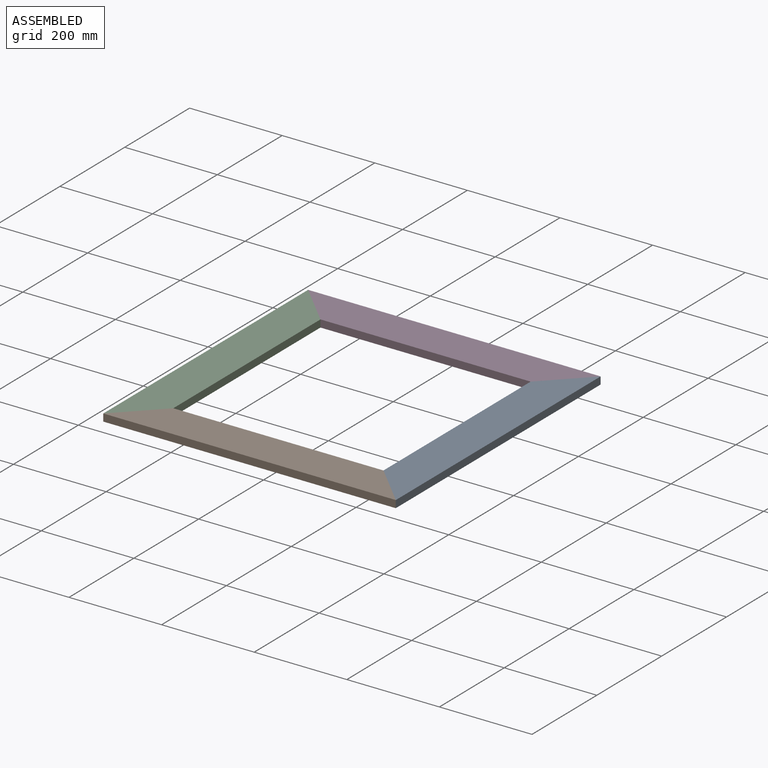
[diagram: assembled view]
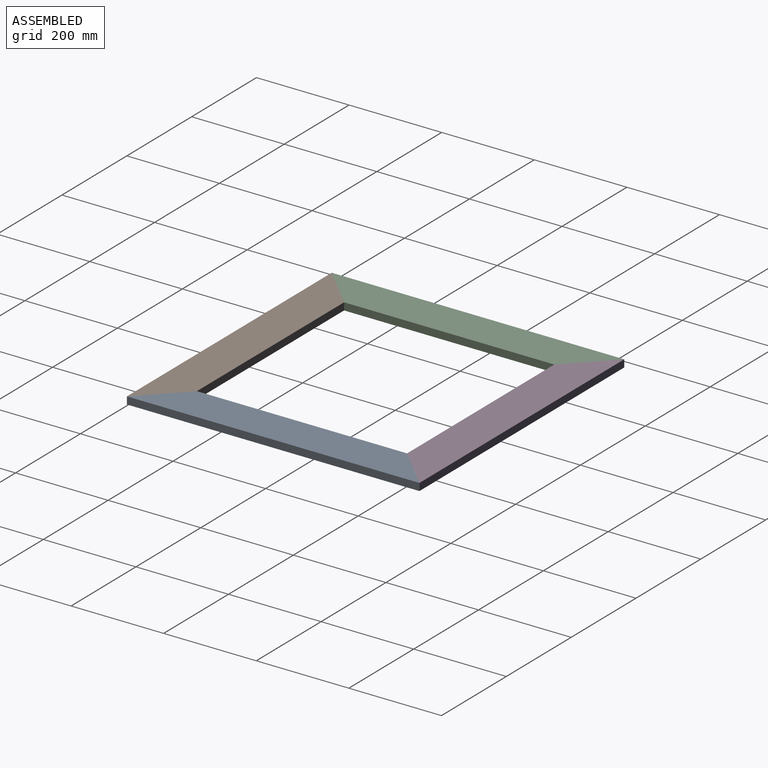
[diagram: assembled view, second angle]
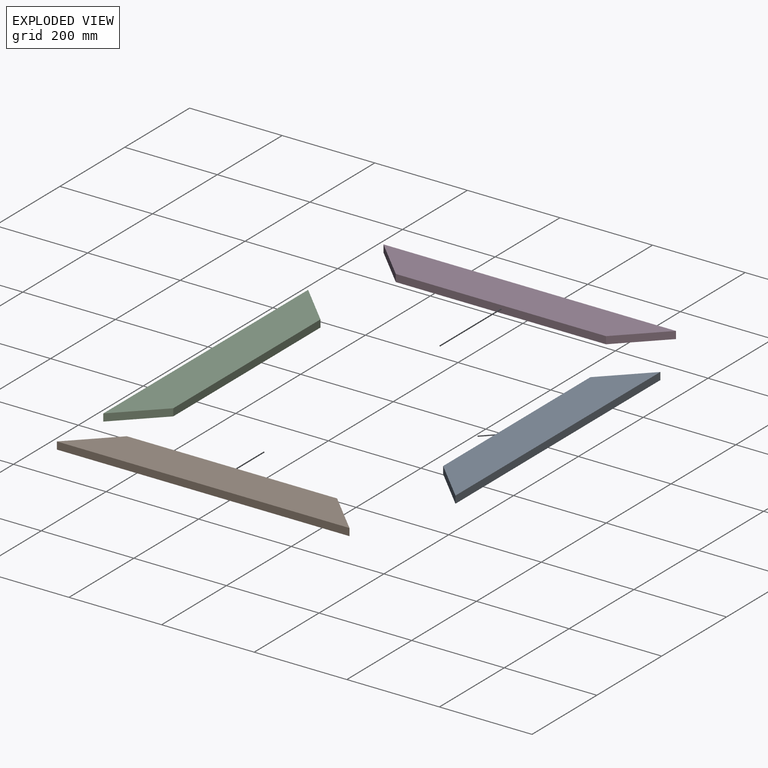
[diagram: exploded view]
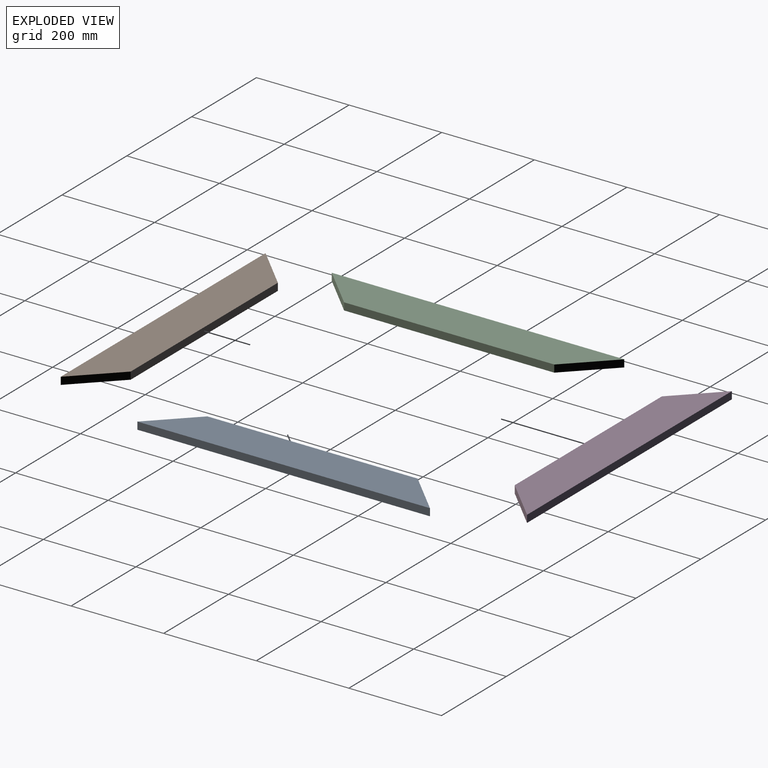
[diagram: exploded view, second angle]
ASSEMBLY  parts=4 mates=9
PART A: 6 faces, bbox 631.8x88.9x15.9 mm
  f0: plane 631.83x15.88mm, normal (0,1,0), area 10030.2mm2, adj f1,f3,f4,f5
  f1: plane 88.9x88.9mm, normal (-0.71,-0.71,0), area 1995.9mm2, adj f0,f2,f4,f5
  f2: plane 454.03x15.88mm, normal (0,-1,0), area 7207.6mm2, adj f1,f3,f4,f5
  f3: plane 88.9x88.9mm, normal (0.71,-0.71,0), area 1995.9mm2, adj f0,f2,f4,f5
  f4: plane 631.83x88.9mm, normal (0,0,1), area 48266mm2, adj f0,f1,f2,f3
  f5: plane 631.83x88.9mm, normal (0,0,-1), area 48266mm2, adj f0,f1,f2,f3
PART B: same geometry as A
PART C: same geometry as A
PART D: same geometry as A
PLACE A rot(axis=(0,0,-1),90deg) t=(876.09,45.61,-73.15)mm
PLACE B rot(axis=(1,0,0),180deg) t=(244.27,-586.21,-57.27)mm
PLACE C rot(axis=(0,0,1),90deg) t=(244.27,-586.21,-73.15)mm
PLACE D t=(244.27,45.61,-73.15)mm
MATE planar B.f5 <-> C.f4  axis (0,0,1) through (560.18,-544.19,-57.27)mm
MATE planar D.f4 <-> A.f4  axis (0,0,1) through (560.18,3.59,-57.27)mm
MATE planar A.f3 <-> B.f3  axis (-0.71,-0.71,0) through (831.64,-541.76,-65.21)mm
MATE planar C.f4 <-> D.f4  axis (0,0,1) through (286.29,-270.3,-57.27)mm
MATE planar D.f4 <-> C.f4  axis (0,0,1) through (560.18,3.59,-57.27)mm
MATE planar B.f1 <-> C.f1  axis (-0.71,0.71,0) through (288.72,-541.76,-57.27)mm
MATE planar A.f1 <-> D.f3  axis (-0.71,0.71,0) through (831.64,1.16,-65.21)mm
MATE planar C.f1 <-> B.f1  axis (0.71,-0.71,0) through (288.72,-541.76,-65.21)mm
MATE planar C.f3 <-> D.f1  axis (0.71,0.71,0) through (288.72,1.16,-65.21)mm
